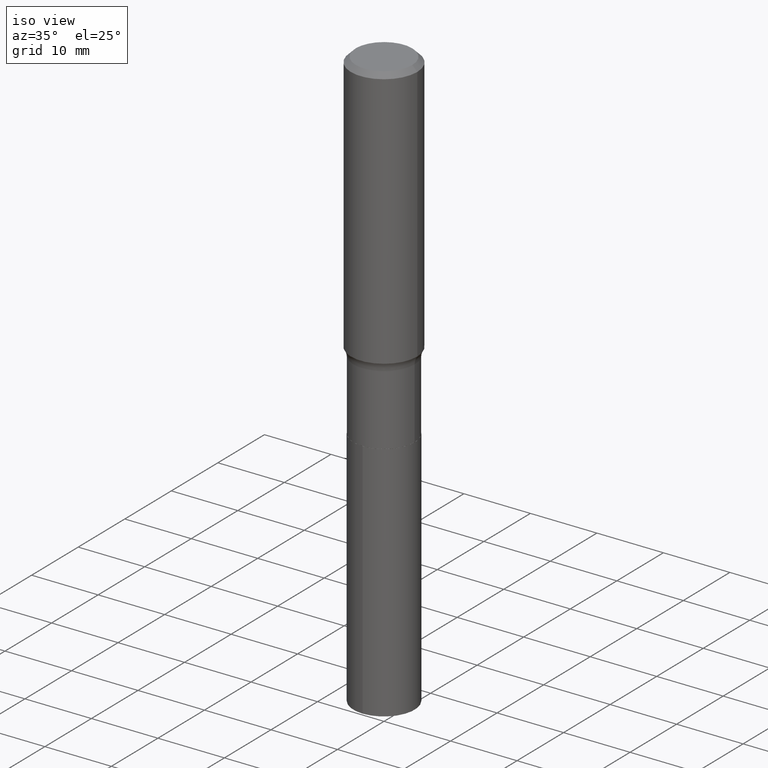
[diagram: clean part render]
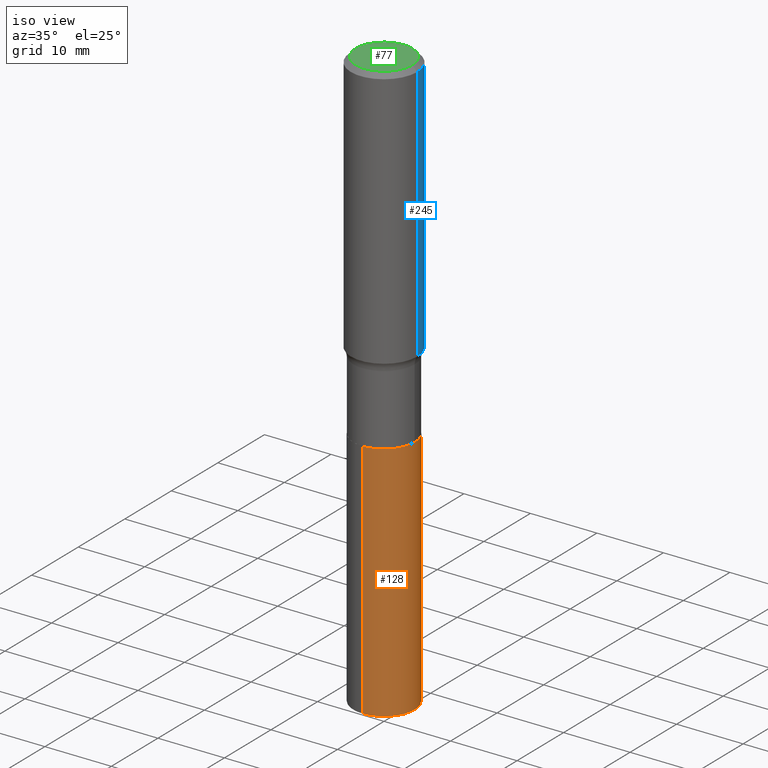
[diagram: same view with three faces highlighted in distinct colors, each labeled with its STEP entity id]
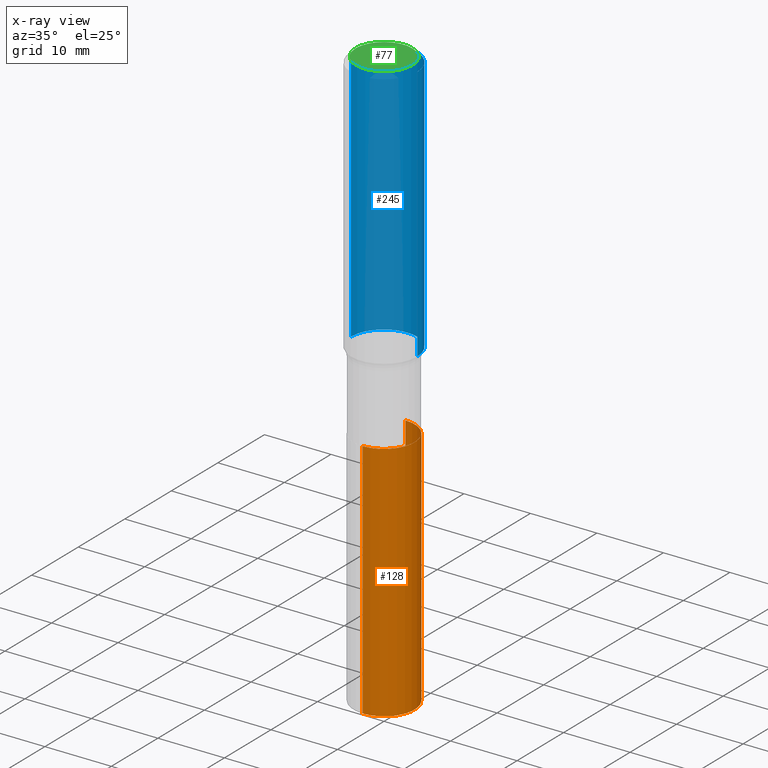
[diagram: x-ray of the same camera — body ghosted, the three highlighted faces saturated]
A machine part, iso view with three faces highlighted in distinct colors.
The next image is the same camera in x-ray (body ghosted, the three faces saturated) — at least one of them is partly hidden behind the body in this view.
Their STEP definitions:

[orange] entity #128 — the highlighted cylindrical surface (partial cylindrical patch) has radius 4.5999 mm, axis along (-0, 0, 1).
#9 = CARTESIAN_POINT ( 'NONE',  ( 1.286792894461590621E-15, 0.1810999999999929888, -2.015700000000000269 ) ) ;
#42 = DIRECTION ( 'NONE',  ( -6.982962677686266711E-15, -1.000000000000000000, 3.016949744521549444E-15 ) ) ;
#69 = DIRECTION ( 'NONE',  ( -2.445392554448218203E-29, 3.491590535670392048E-15, 1.000000000000000000 ) ) ;
#86 = VERTEX_POINT ( 'NONE', #191 ) ;
#95 = CIRCLE ( 'NONE', #426, 0.1811000000000000110 ) ;
#96 = ORIENTED_EDGE ( 'NONE', *, *, #322, .F. ) ;
#100 = EDGE_CURVE ( 'NONE', #86, #133, #207, .T. ) ;
#108 = EDGE_CURVE ( 'NONE', #86, #351, #135, .T. ) ;
#120 = EDGE_LOOP ( 'NONE', ( #357, #196, #96, #394 ) ) ;
#128 = ADVANCED_FACE ( 'NONE', ( #435 ), #154, .T. ) ;
#133 = VERTEX_POINT ( 'NONE', #467 ) ;
#135 = LINE ( 'NONE', #231, #417 ) ;
#140 = CARTESIAN_POINT ( 'NONE',  ( -1.264614540928933635E-15, -0.1811000000000070609, -2.015699999999999381 ) ) ;
#143 = CARTESIAN_POINT ( 'NONE',  ( 1.286792894461625725E-15, 0.1810999999999929888, -2.015700000000000269 ) ) ;
#154 = CYLINDRICAL_SURFACE ( 'NONE', #403, 0.1811000000000000110 ) ;
#167 = CARTESIAN_POINT ( 'NONE',  ( 8.428931263980175270E-29, -1.203459201810845849E-14, -3.446799389334016528 ) ) ;
#172 = CARTESIAN_POINT ( 'NONE',  ( 4.929331472627379200E-29, -7.037778934706127955E-15, -2.015699999999999825 ) ) ;
#191 = CARTESIAN_POINT ( 'NONE',  ( -1.264614540928898728E-15, -0.1811000000000120569, -3.446799389334016084 ) ) ;
#196 = ORIENTED_EDGE ( 'NONE', *, *, #423, .T. ) ;
#207 = CIRCLE ( 'NONE', #490, 0.1811000000000000110 ) ;
#225 = DIRECTION ( 'NONE',  ( -2.445392554448218203E-29, 3.491590535670392442E-15, 1.000000000000000000 ) ) ;
#231 = CARTESIAN_POINT ( 'NONE',  ( -1.264614540928933635E-15, -0.1811000000000070609, -2.015699999999999381 ) ) ;
#264 = CARTESIAN_POINT ( 'NONE',  ( 4.929331472627379200E-29, -7.037778934706127955E-15, -2.015699999999999825 ) ) ;
#284 = DIRECTION ( 'NONE',  ( -2.445392554448218203E-29, 3.491590535670392048E-15, 1.000000000000000000 ) ) ;
#322 = EDGE_CURVE ( 'NONE', #351, #355, #95, .T. ) ;
#345 = LINE ( 'NONE', #9, #454 ) ;
#346 = DIRECTION ( 'NONE',  ( -6.982962677686266711E-15, -1.000000000000000000, 3.016949744521549444E-15 ) ) ;
#351 = VERTEX_POINT ( 'NONE', #140 ) ;
#355 = VERTEX_POINT ( 'NONE', #143 ) ;
#357 = ORIENTED_EDGE ( 'NONE', *, *, #100, .T. ) ;
#394 = ORIENTED_EDGE ( 'NONE', *, *, #108, .F. ) ;
#403 = AXIS2_PLACEMENT_3D ( 'NONE', #264, #471, #346 ) ;
#417 = VECTOR ( 'NONE', #225, 39.37007874015748143 ) ;
#423 = EDGE_CURVE ( 'NONE', #133, #355, #345, .T. ) ;
#426 = AXIS2_PLACEMENT_3D ( 'NONE', #172, #69, #482 ) ;
#435 = FACE_OUTER_BOUND ( 'NONE', #120, .T. ) ;
#454 = VECTOR ( 'NONE', #463, 39.37007874015748143 ) ;
#463 = DIRECTION ( 'NONE',  ( -2.445392554448218203E-29, 3.491590535670392442E-15, 1.000000000000000000 ) ) ;
#467 = CARTESIAN_POINT ( 'NONE',  ( 1.286792894461625725E-15, 0.1810999999999879928, -3.446799389334016972 ) ) ;
#471 = DIRECTION ( 'NONE',  ( -2.445392554448218203E-29, 3.491590535670392048E-15, 1.000000000000000000 ) ) ;
#482 = DIRECTION ( 'NONE',  ( -6.982962677686266711E-15, -1.000000000000000000, 3.016949744521549444E-15 ) ) ;
#490 = AXIS2_PLACEMENT_3D ( 'NONE', #167, #284, #42 ) ;

[blue] entity #245 — the highlighted cylindrical surface (partial cylindrical patch) has radius 5 mm, axis along (-0, 0, 1).
#15 = VERTEX_POINT ( 'NONE', #308 ) ;
#36 = DIRECTION ( 'NONE',  ( 1.000000000000000000, -6.982962677686266711E-15, 0.000000000000000000 ) ) ;
#39 = CARTESIAN_POINT ( 'NONE',  ( -0.1968500000000001082, 1.398703375343757985E-15, -9.682923725166787881E-30 ) ) ;
#45 = LINE ( 'NONE', #443, #188 ) ;
#46 = ORIENTED_EDGE ( 'NONE', *, *, #212, .F. ) ;
#66 = CIRCLE ( 'NONE', #325, 0.1968500000000000527 ) ;
#83 = CARTESIAN_POINT ( 'NONE',  ( -0.1968500000000000527, -1.362583810088790289E-15, -0.02952750000000019595 ) ) ;
#102 = DIRECTION ( 'NONE',  ( 1.000000000000000000, -6.982962677686266711E-15, 4.876176775795935793E-29 ) ) ;
#116 = DIRECTION ( 'NONE',  ( 1.000000000000000000, -6.982962677686266711E-15, 0.000000000000000000 ) ) ;
#118 = EDGE_LOOP ( 'NONE', ( #169, #432, #400, #46 ) ) ;
#131 = VECTOR ( 'NONE', #420, 39.37007874015748143 ) ;
#146 = AXIS2_PLACEMENT_3D ( 'NONE', #149, #224, #116 ) ;
#149 = CARTESIAN_POINT ( 'NONE',  ( 3.795858306948668529E-29, -5.419479655632405650E-15, -1.552200664898319538 ) ) ;
#169 = ORIENTED_EDGE ( 'NONE', *, *, #455, .T. ) ;
#188 = VECTOR ( 'NONE', #453, 39.37007874015748143 ) ;
#193 = VERTEX_POINT ( 'NONE', #83 ) ;
#197 = VERTEX_POINT ( 'NONE', #386 ) ;
#211 = DIRECTION ( 'NONE',  ( -2.445468806185136597E-29, 3.491481338843145583E-15, 1.000000000000000000 ) ) ;
#212 = EDGE_CURVE ( 'NONE', #323, #15, #45, .T. ) ;
#224 = DIRECTION ( 'NONE',  ( -2.445468806185136597E-29, 3.491481338843145583E-15, 1.000000000000000000 ) ) ;
#226 = LINE ( 'NONE', #39, #131 ) ;
#245 = ADVANCED_FACE ( 'NONE', ( #374 ), #330, .T. ) ;
#265 = DIRECTION ( 'NONE',  ( -2.445468806185136597E-29, 3.491481338843145583E-15, 1.000000000000000000 ) ) ;
#298 = CIRCLE ( 'NONE', #146, 0.1968500000000001915 ) ;
#308 = CARTESIAN_POINT ( 'NONE',  ( 0.1968500000000000527, -1.477690918335233688E-15, -0.02952750000000019595 ) ) ;
#323 = VERTEX_POINT ( 'NONE', #328 ) ;
#325 = AXIS2_PLACEMENT_3D ( 'NONE', #340, #265, #36 ) ;
#328 = CARTESIAN_POINT ( 'NONE',  ( 0.1968500000000001915, -6.794075858734949625E-15, -1.552200664898319538 ) ) ;
#330 = CYLINDRICAL_SURFACE ( 'NONE', #377, 0.1968500000000001082 ) ;
#340 = CARTESIAN_POINT ( 'NONE',  ( 7.220858017463209485E-31, -1.030947152326916609E-16, -0.02952750000000019595 ) ) ;
#372 = CARTESIAN_POINT ( 'NONE',  ( 0.000000000000000000, 0.000000000000000000, 0.000000000000000000 ) ) ;
#373 = EDGE_CURVE ( 'NONE', #15, #193, #66, .T. ) ;
#374 = FACE_OUTER_BOUND ( 'NONE', #118, .T. ) ;
#377 = AXIS2_PLACEMENT_3D ( 'NONE', #372, #211, #102 ) ;
#386 = CARTESIAN_POINT ( 'NONE',  ( -0.1968500000000001915, -4.020776280288646285E-15, -1.552200664898319538 ) ) ;
#399 = EDGE_CURVE ( 'NONE', #197, #193, #226, .T. ) ;
#400 = ORIENTED_EDGE ( 'NONE', *, *, #373, .F. ) ;
#420 = DIRECTION ( 'NONE',  ( -2.445468806185136877E-29, 3.491481338843145188E-15, 1.000000000000000000 ) ) ;
#432 = ORIENTED_EDGE ( 'NONE', *, *, #399, .T. ) ;
#443 = CARTESIAN_POINT ( 'NONE',  ( 0.1968500000000001082, -1.374596203102542397E-15, 9.598753983154305062E-30 ) ) ;
#453 = DIRECTION ( 'NONE',  ( -2.445468806185136877E-29, 3.491481338843145188E-15, 1.000000000000000000 ) ) ;
#455 = EDGE_CURVE ( 'NONE', #323, #197, #298, .T. ) ;

[green] entity #77 — the highlighted planar face has unit normal (0, -0, -1).
#1 = EDGE_LOOP ( 'NONE', ( #437, #14 ) ) ;
#5 = CARTESIAN_POINT ( 'NONE',  ( -0.1673224999999999851, 1.219954130253505460E-15, 4.096137381439757534E-18 ) ) ;
#8 = EDGE_CURVE ( 'NONE', #320, #414, #295, .T. ) ;
#12 = DIRECTION ( 'NONE',  ( 1.000000000000000000, -6.982962677686267499E-15, 4.876294436782262290E-29 ) ) ;
#14 = ORIENTED_EDGE ( 'NONE', *, *, #8, .T. ) ;
#33 = AXIS2_PLACEMENT_3D ( 'NONE', #160, #382, #270 ) ;
#77 = ADVANCED_FACE ( 'NONE', ( #364 ), #171, .F. ) ;
#113 = CARTESIAN_POINT ( 'NONE',  ( -1.001697619218021790E-46, 1.430158722866389718E-32, 4.096137381448108366E-18 ) ) ;
#160 = CARTESIAN_POINT ( 'NONE',  ( -5.008488096090108951E-47, 7.150793614331948590E-33, 2.048068690724054183E-18 ) ) ;
#171 = PLANE ( 'NONE',  #33 ) ;
#180 = AXIS2_PLACEMENT_3D ( 'NONE', #405, #294, #209 ) ;
#209 = DIRECTION ( 'NONE',  ( 1.000000000000000000, -6.982962677686267499E-15, 4.876294436782262290E-29 ) ) ;
#270 = DIRECTION ( 'NONE',  ( -1.000000000000000000, 6.982962677686265922E-15, -4.876176775795935793E-29 ) ) ;
#294 = DIRECTION ( 'NONE',  ( -2.445468806185136597E-29, 3.491481338843145583E-15, 1.000000000000000000 ) ) ;
#295 = CIRCLE ( 'NONE', #475, 0.1673224999999999851 ) ;
#303 = DIRECTION ( 'NONE',  ( -2.445468806185136597E-29, 3.491481338843145583E-15, 1.000000000000000000 ) ) ;
#317 = EDGE_CURVE ( 'NONE', #414, #320, #476, .T. ) ;
#320 = VERTEX_POINT ( 'NONE', #366 ) ;
#364 = FACE_OUTER_BOUND ( 'NONE', #1, .T. ) ;
#366 = CARTESIAN_POINT ( 'NONE',  ( 0.1673224999999999851, -1.300749711163072594E-15, 4.096137381456741925E-18 ) ) ;
#382 = DIRECTION ( 'NONE',  ( 2.438088387897960049E-29, -3.491481338843145188E-15, -1.000000000000000000 ) ) ;
#405 = CARTESIAN_POINT ( 'NONE',  ( -1.001697619218021790E-46, 1.430158722866389718E-32, 4.096137381448108366E-18 ) ) ;
#414 = VERTEX_POINT ( 'NONE', #5 ) ;
#437 = ORIENTED_EDGE ( 'NONE', *, *, #317, .T. ) ;
#475 = AXIS2_PLACEMENT_3D ( 'NONE', #113, #303, #12 ) ;
#476 = CIRCLE ( 'NONE', #180, 0.1673224999999999851 ) ;